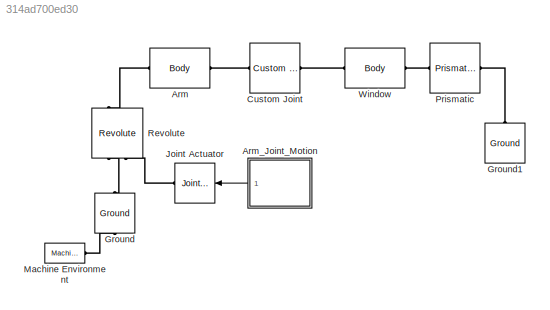
MODEL slx_314ad700ed30
KIND model
CONFIG AbsTol = auto
CONFIG FixedStep = auto
CONFIG MaxStep = auto
CONFIG MinStep = auto
CONFIG PreLoadFcn = Arm_length = 0.5;
CONFIG RelTol = 1e-3
CONFIG SampleTimeConstraint = Unconstrained
CONFIG Solver = ode45
CONFIG SolverMode = Auto
CONFIG SolverName = ode45
CONFIG StartTime = 0.0
CONFIG StopTime = 10.0
BLOCK [Reference] Arm  REF=mblibv1/Bodies/Body
  Ports = [0, 0, 0, 0, 0, 1, 1]
  SourceBlock = mblibv1/Bodies/Body
  SourceType = Body
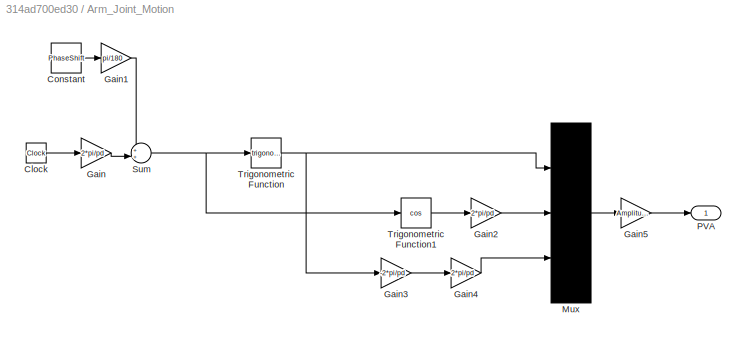
BLOCK [SubSystem] Arm_Joint_Motion
  Ports = [0, 1]
  RequestExecContextInheritance = off
  Variant = off
BLOCK [Clock] Arm_Joint_Motion/Clock
BLOCK [Constant] Arm_Joint_Motion/Constant
  Value = PhaseShift
BLOCK [Gain] Arm_Joint_Motion/Gain
  Gain = 2*pi/pd
  OutDataTypeStr = Inherit: Inherit via internal rule
  ParamDataTypeStr = Inherit: Inherit via internal rule
  SaturateOnIntegerOverflow = off
BLOCK [Gain] Arm_Joint_Motion/Gain1
  Gain = pi/180
  OutDataTypeStr = Inherit: Inherit via internal rule
  ParamDataTypeStr = Inherit: Inherit via internal rule
  SaturateOnIntegerOverflow = off
BLOCK [Gain] Arm_Joint_Motion/Gain2
  Gain = 2*pi/pd
  OutDataTypeStr = Inherit: Inherit via internal rule
  ParamDataTypeStr = Inherit: Inherit via internal rule
  SaturateOnIntegerOverflow = off
BLOCK [Gain] Arm_Joint_Motion/Gain3
  Gain = -2*pi/pd
  OutDataTypeStr = Inherit: Inherit via internal rule
  ParamDataTypeStr = Inherit: Inherit via internal rule
  SaturateOnIntegerOverflow = off
BLOCK [Gain] Arm_Joint_Motion/Gain4
  Gain = 2*pi/pd
  OutDataTypeStr = Inherit: Inherit via internal rule
  ParamDataTypeStr = Inherit: Inherit via internal rule
  SaturateOnIntegerOverflow = off
BLOCK [Gain] Arm_Joint_Motion/Gain5
  Gain = Amplitude
  OutDataTypeStr = Inherit: Inherit via internal rule
  ParamDataTypeStr = Inherit: Inherit via internal rule
  SaturateOnIntegerOverflow = off
BLOCK [Mux] Arm_Joint_Motion/Mux
  DisplayOption = bar
  Inputs = 3
  Ports = [3, 1]
BLOCK [Outport] Arm_Joint_Motion/PVA
  IconDisplay = Port number
BLOCK [Sum] Arm_Joint_Motion/Sum
  IconShape = round
  InputSameDT = off
  Inputs = ++|
  OutDataTypeStr = Inherit: Inherit via internal rule
  Ports = [2, 1]
  SaturateOnIntegerOverflow = off
BLOCK [Trigonometry] Arm_Joint_Motion/Trigonometric Function
  Ports = [1, 1]
BLOCK [Trigonometry] Arm_Joint_Motion/Trigonometric Function1
  Operator = cos
  Ports = [1, 1]
BLOCK [Reference] Custom Joint  REF=mblibv1/Joints/Custom Joint
  Ports = [0, 0, 0, 0, 0, 1, 1]
  SourceBlock = mblibv1/Joints/Custom Joint
  SourceType = Custom Joint
BLOCK [Reference] Ground  REF=mblibv1/Bodies/Ground
  Ports = [0, 0, 0, 0, 0, 1, 1]
  SourceBlock = mblibv1/Bodies/Ground
  SourceType = Ground
  UserDataPersistent = on
BLOCK [Reference] Ground1  REF=mblibv1/Bodies/Ground
  Ports = [0, 0, 0, 0, 0, 0, 1]
  SourceBlock = mblibv1/Bodies/Ground
  SourceType = Ground
  UserDataPersistent = on
BLOCK [Reference] Joint Actuator  REF=mblibv1/Sensors & 
Actuators/Joint Actuator
  Ports = [1, 0, 0, 0, 0, 0, 1]
  SourceBlock = mblibv1/Sensors & \nActuators/Joint Actuator
  SourceType = Joint Actuator
BLOCK [Reference] Machine Environment  REF=mblibv1/Bodies/Machine
Environment
  Ports = [0, 0, 0, 0, 0, 0, 1]
  SourceBlock = mblibv1/Bodies/Machine\nEnvironment
  SourceType = Machine Environment
  Tag = Factory ground
BLOCK [Reference] Prismatic  REF=mblibv1/Joints/Prismatic
  Ports = [0, 0, 0, 0, 0, 1, 1]
  SourceBlock = mblibv1/Joints/Prismatic
  SourceType = Prismatic
BLOCK [Reference] Revolute  REF=mblibv1/Joints/Revolute
  Ports = [0, 0, 0, 0, 0, 2, 2]
  SourceBlock = mblibv1/Joints/Revolute
  SourceType = Revolute
BLOCK [Reference] Window  REF=mblibv1/Bodies/Body
  Ports = [0, 0, 0, 0, 0, 1, 1]
  SourceBlock = mblibv1/Bodies/Body
  SourceType = Body
LINE Arm_Joint_Motion/Clock:1 -> Arm_Joint_Motion/Gain:1
LINE Arm_Joint_Motion/Constant:1 -> Arm_Joint_Motion/Gain1:1
LINE Arm_Joint_Motion/Gain1:1 -> Arm_Joint_Motion/Sum:1
LINE Arm_Joint_Motion/Gain2:1 -> Arm_Joint_Motion/Mux:2
LINE Arm_Joint_Motion/Gain3:1 -> Arm_Joint_Motion/Gain4:1
LINE Arm_Joint_Motion/Gain4:1 -> Arm_Joint_Motion/Mux:3
LINE Arm_Joint_Motion/Gain5:1 -> Arm_Joint_Motion/PVA:1
LINE Arm_Joint_Motion/Gain:1 -> Arm_Joint_Motion/Sum:2
LINE Arm_Joint_Motion/Mux:1 -> Arm_Joint_Motion/Gain5:1
NET Arm_Joint_Motion/Sum:1 -> Arm_Joint_Motion/Trigonometric Function1:1, Arm_Joint_Motion/Trigonometric Function:1
LINE Arm_Joint_Motion/Trigonometric Function1:1 -> Arm_Joint_Motion/Gain2:1
NET Arm_Joint_Motion/Trigonometric Function:1 -> Arm_Joint_Motion/Gain3:1, Arm_Joint_Motion/Mux:1
LINE Arm_Joint_Motion:1 -> Joint Actuator:1
PLINE Arm:LConn1 -- Revolute:RConn1
PLINE Arm:RConn1 -- Custom Joint:LConn1
PLINE Custom Joint:RConn1 -- Window:LConn1
PLINE Ground1:RConn1 -- Prismatic:RConn1
PLINE Ground:LConn1 -- Machine Environment:RConn1
PLINE Ground:RConn1 -- Revolute:LConn1
PLINE Joint Actuator:RConn1 -- Revolute:LConn2
PLINE Prismatic:LConn1 -- Window:RConn1
note: NET lines group one-source signal fan-out (src -> all destinations, sorted); 1:1 wires keep LINE
